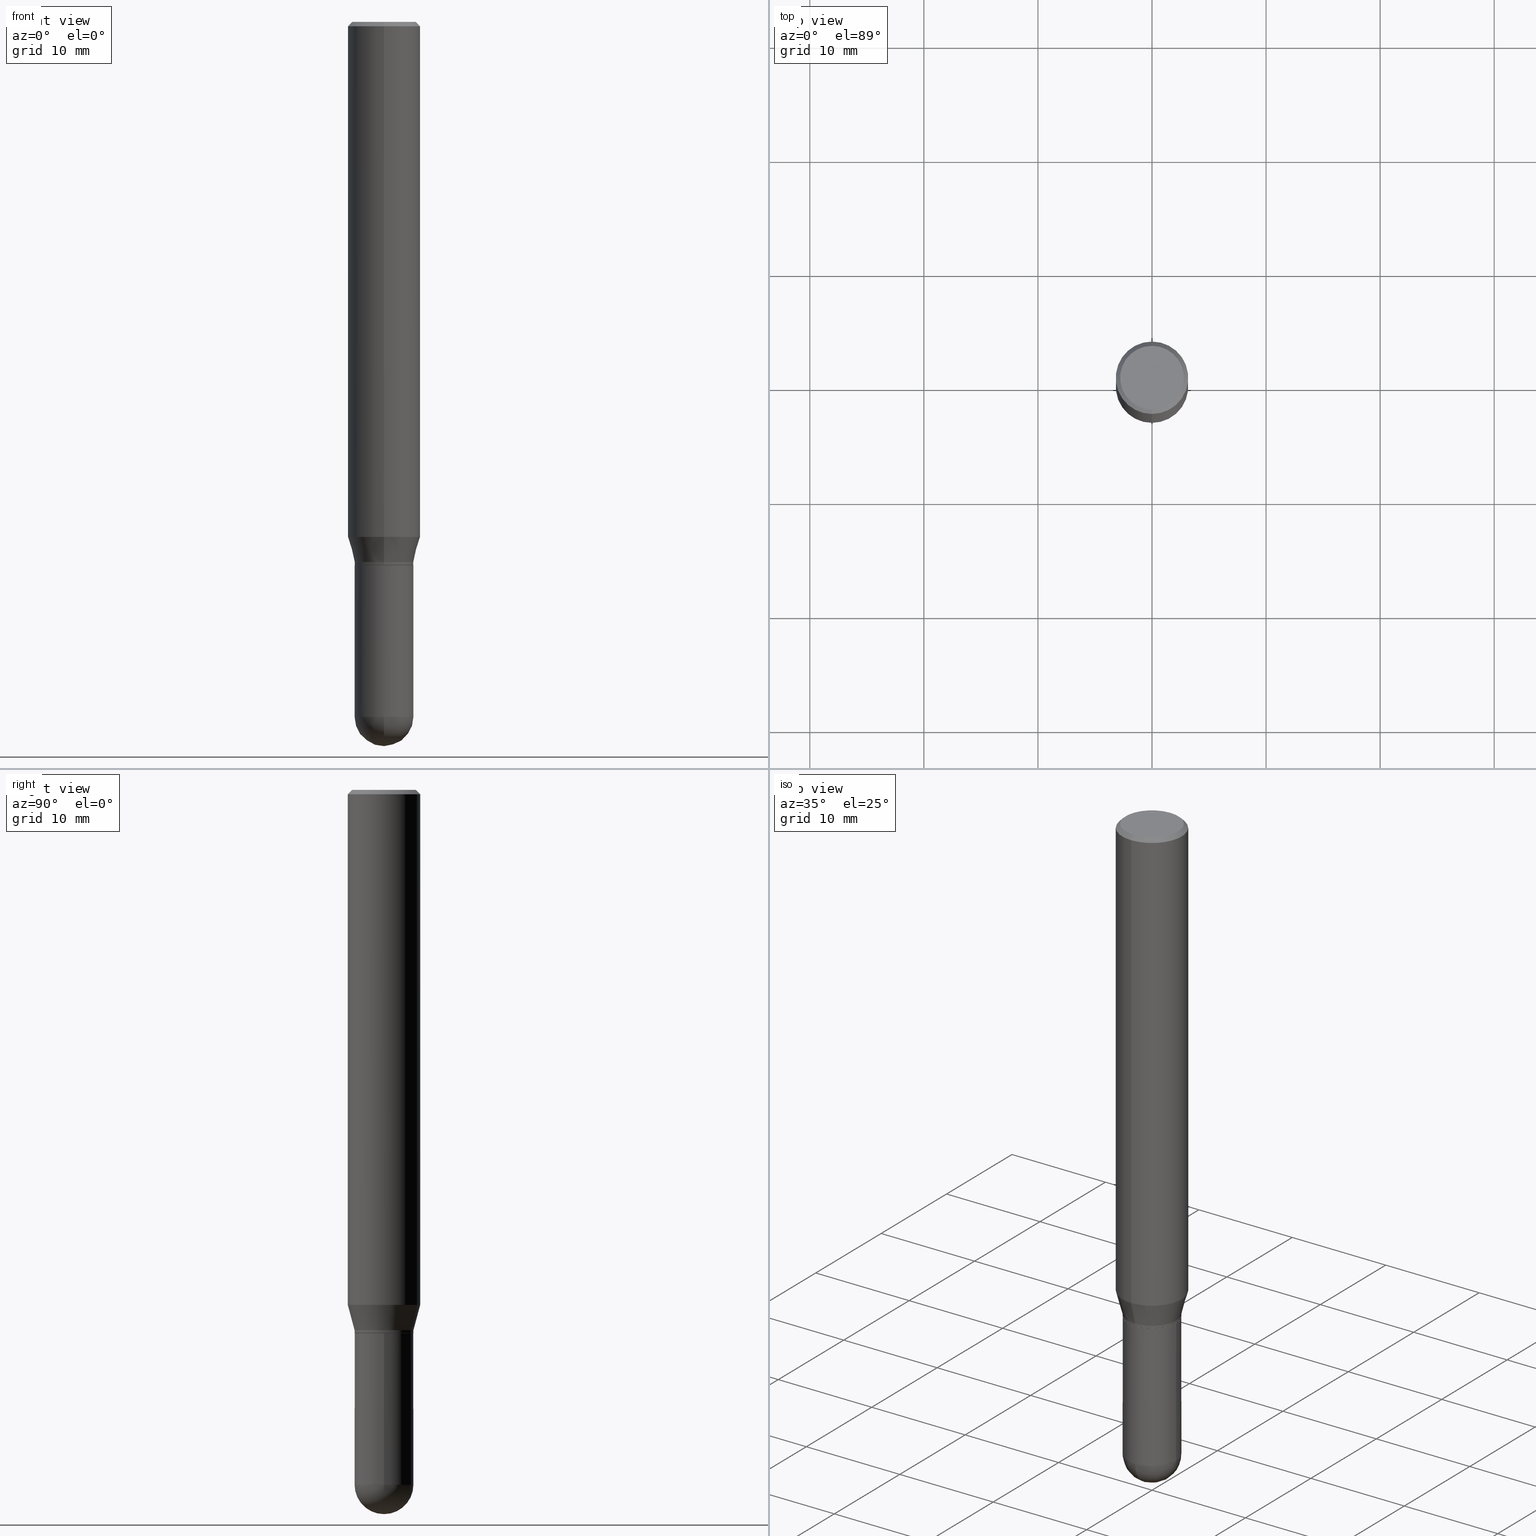
[diagram: canonical four-view strip — front | top / right | iso, engineering-drawing reading convention]
A machine part, canonical four-view strip (front | top / right | iso — engineering-drawing reading convention). The complete STEP part file that produces these views, byte-faithful:
ISO-10303-21;
HEADER;
FILE_DESCRIPTION (( 'STEP AP203' ),
    '1' );
FILE_NAME ('39526.STEP',
    '2024-03-08T12:52:22',
    ( '' ),
    ( '' ),
    'SwSTEP 2.0',
    'SolidWorks 2023',
    '' );
FILE_SCHEMA (( 'CONFIG_CONTROL_DESIGN' ));
ENDSEC;

DATA;
#1 = ORIENTED_EDGE ( 'NONE', *, *, #157, .T. ) ;
#2 = CIRCLE ( 'NONE', #101, 0.1015500000000000985 ) ;
#3 = AXIS2_PLACEMENT_3D ( 'NONE', #361, #445, #88 ) ;
#4 = CARTESIAN_POINT ( 'NONE',  ( -8.728703347107828458E-16, -0.1250000000000000555, -0.01499999999999956403 ) ) ;
#5 = EDGE_LOOP ( 'NONE', ( #257, #48, #97, #421 ) ) ;
#6 = DIRECTION ( 'NONE',  ( -6.982962677686266711E-15, -1.000000000000000000, 3.491458814188467583E-15 ) ) ;
#7 = ORIENTED_EDGE ( 'NONE', *, *, #13, .F. ) ;
#8 = FACE_OUTER_BOUND ( 'NONE', #282, .T. ) ;
#9 = ORIENTED_EDGE ( 'NONE', *, *, #44, .T. ) ;
#10 = VERTEX_POINT ( 'NONE', #55 ) ;
#11 = FACE_OUTER_BOUND ( 'NONE', #63, .T. ) ;
#12 = CARTESIAN_POINT ( 'NONE',  ( 4.584060760983900341E-29, -6.544739547196283432E-15, -1.874500000000000277 ) ) ;
#13 = EDGE_CURVE ( 'NONE', #164, #455, #405, .T. ) ;
#14 = CARTESIAN_POINT ( 'NONE',  ( -0.1015500000000000708, 7.215561481643822416E-16, -4.995178584153860605E-30 ) ) ;
#15 = EDGE_LOOP ( 'NONE', ( #284, #213, #412, #340 ) ) ;
#16 = PERSON ( 'UNSPECIFIED', 'UNSPECIFIED', 'UNSPECIFIED', ('UNSPECIFIED'), ('UNSPECIFIED'), ('UNSPECIFIED') ) ;
#17 = VECTOR ( 'NONE', #119, 39.37007874015748143 ) ;
#18 = LOCAL_TIME ( 7, 52, 22.00000000000000000, #355 ) ;
#19 = ORIENTED_EDGE ( 'NONE', *, *, #456, .T. ) ;
#20 = PLANE ( 'NONE',  #336 ) ;
#21 = LINE ( 'NONE', #183, #469 ) ;
#22 = EDGE_CURVE ( 'NONE', #104, #455, #21, .T. ) ;
#23 = ORIENTED_EDGE ( 'NONE', *, *, #444, .F. ) ;
#24 = DATE_AND_TIME ( #464, #235 ) ;
#25 = VECTOR ( 'NONE', #346, 39.37007874015748143 ) ;
#26 = CARTESIAN_POINT ( 'NONE',  ( -0.1015500000000000708, -6.738779315575238500E-15, -1.875000000000000000 ) ) ;
#27 = AXIS2_PLACEMENT_3D ( 'NONE', #402, #163, #124 ) ;
#28 = DIMENSIONAL_EXPONENTS ( 1.000000000000000000, 0.000000000000000000, 0.000000000000000000, 0.000000000000000000, 0.000000000000000000, 0.000000000000000000, 0.000000000000000000 ) ;
#29 = DATE_AND_TIME ( #158, #18 ) ;
#30 = FACE_OUTER_BOUND ( 'NONE', #143, .T. ) ;
#31 = CARTESIAN_POINT ( 'NONE',  ( 7.215561481643815513E-16, 0.1015499999999999875, -3.545576425808388340E-16 ) ) ;
#32 = CARTESIAN_POINT ( 'NONE',  ( 7.215561481644268122E-16, 0.1015499999999933678, -1.874500000000000499 ) ) ;
#33 = AXIS2_PLACEMENT_3D ( 'NONE', #468, #73, #353 ) ;
#34 = CALENDAR_DATE ( 2024, 8, 3 ) ;
#35 = CARTESIAN_POINT ( 'NONE',  ( 4.585283503251433812E-29, -6.546485276603377605E-15, -1.875000000000000000 ) ) ;
#36 = EDGE_CURVE ( 'NONE', #248, #203, #129, .T. ) ;
#37 = CYLINDRICAL_SURFACE ( 'NONE', #480, 0.1015500000000000708 ) ;
#38 = CARTESIAN_POINT ( 'NONE',  ( -0.1015500000000000985, -6.738779315575238500E-15, -2.398450000000000415 ) ) ;
#39 = EDGE_LOOP ( 'NONE', ( #395, #9, #327, #437 ) ) ;
#40 = AXIS2_PLACEMENT_3D ( 'NONE', #334, #251, #210 ) ;
#41 = AXIS2_PLACEMENT_3D ( 'NONE', #254, #293, #53 ) ;
#42 = DIRECTION ( 'NONE',  ( -6.982962677686266711E-15, -1.000000000000000000, 2.690150658458161914E-15 ) ) ;
#43 = EDGE_LOOP ( 'NONE', ( #148, #1, #95, #420 ) ) ;
#44 = EDGE_CURVE ( 'NONE', #330, #279, #497, .T. ) ;
#45 = CARTESIAN_POINT ( 'NONE',  ( 0.000000000000000000, 0.000000000000000000, 0.000000000000000000 ) ) ;
#46 = ORIENTED_EDGE ( 'NONE', *, *, #215, .F. ) ;
#47 = DIRECTION ( 'NONE',  ( 1.000000000000000000, -6.982962677686269866E-15, 0.000000000000000000 ) ) ;
#48 = ORIENTED_EDGE ( 'NONE', *, *, #91, .F. ) ;
#49 = CIRCLE ( 'NONE', #27, 0.1250000000000000000 ) ;
#50 = DIRECTION ( 'NONE',  ( 6.982962677686265922E-15, 1.000000000000000000, -3.483106191921935554E-15 ) ) ;
#51 = ORIENTED_EDGE ( 'NONE', *, *, #296, .F. ) ;
#52 = ADVANCED_FACE ( 'NONE', ( #452 ), #298, .T. ) ;
#53 = DIRECTION ( 'NONE',  ( 1.000000000000000000, -6.982962677686258033E-15, 0.000000000000000000 ) ) ;
#54 = VERTEX_POINT ( 'NONE', #498 ) ;
#55 = CARTESIAN_POINT ( 'NONE',  ( 8.048672839322978639E-16, 0.1015499999999934788, -1.865000000000000213 ) ) ;
#56 = CONICAL_SURFACE ( 'NONE', #3, 0.1010500000000000703, 0.7853981633974653764 ) ;
#57 = EDGE_CURVE ( 'NONE', #399, #166, #139, .T. ) ;
#58 = CYLINDRICAL_SURFACE ( 'NONE', #130, 0.1250000000000000000 ) ;
#59 = APPROVAL_PERSON_ORGANIZATION ( #391, #126, #384 ) ;
#60 = DIRECTION ( 'NONE',  ( -2.445484535067431049E-29, 3.491458814188467583E-15, 1.000000000000000000 ) ) ;
#61 = DIRECTION ( 'NONE',  ( -2.445484535067431049E-29, 3.491458814188467583E-15, 1.000000000000000000 ) ) ;
#62 = APPROVAL ( #509, 'UNSPECIFIED' ) ;
#63 = EDGE_LOOP ( 'NONE', ( #208, #453, #277, #138 ) ) ;
#64 = DIRECTION ( 'NONE',  ( 1.000000000000000000, -6.982962677686258033E-15, 0.000000000000000000 ) ) ;
#65 = DATE_AND_TIME ( #272, #318 ) ;
#66 = CIRCLE ( 'NONE', #266, 0.1250000000000000000 ) ;
#67 = DIRECTION ( 'NONE',  ( 6.982962677686266711E-15, 1.000000000000000000, -2.690150658458162309E-15 ) ) ;
#68 = AXIS2_PLACEMENT_3D ( 'NONE', #398, #165, #42 ) ;
#69 = EDGE_CURVE ( 'NONE', #455, #164, #416, .T. ) ;
#70 = COORDINATED_UNIVERSAL_TIME_OFFSET ( 5, 0, .BEHIND. ) ;
#71 = DIRECTION ( 'NONE',  ( -1.000000000000000000, 6.982962677686266711E-15, -4.883557194083112901E-29 ) ) ;
#72 = MECHANICAL_CONTEXT ( 'NONE', #295, 'mechanical' ) ;
#73 = DIRECTION ( 'NONE',  ( -2.445484535067431049E-29, 3.491458814188467583E-15, 1.000000000000000000 ) ) ;
#74 = APPLICATION_PROTOCOL_DEFINITION ( 'international standard', 'config_control_design', 1994, #214 ) ;
#75 = EDGE_CURVE ( 'NONE', #54, #359, #150, .T. ) ;
#76 = CARTESIAN_POINT ( 'NONE',  ( 0.1015500000000000708, -7.255647370249939489E-15, -1.875000000000000000 ) ) ;
#77 = AXIS2_PLACEMENT_3D ( 'NONE', #12, #333, #430 ) ;
#78 = AXIS2_PLACEMENT_3D ( 'NONE', #363, #512, #134 ) ;
#79 = CARTESIAN_POINT ( 'NONE',  ( 7.180034344856274914E-16, 0.1010499999999935339, -1.875000000000000444 ) ) ;
#80 = APPROVAL ( #423, 'UNSPECIFIED' ) ;
#81 = DIRECTION ( 'NONE',  ( -6.982962677686265922E-15, -1.000000000000000000, 3.491458814188467583E-15 ) ) ;
#82 = ORIENTED_EDGE ( 'NONE', *, *, #57, .F. ) ;
#83 = CARTESIAN_POINT ( 'NONE',  ( 7.197797913250275462E-16, 0.1010499999999935339, -1.875000000000000444 ) ) ;
#84 = ORIENTED_EDGE ( 'NONE', *, *, #157, .F. ) ;
#85 = CIRCLE ( 'NONE', #406, 0.1010500000000000703 ) ;
#86 = CARTESIAN_POINT ( 'NONE',  ( 3.668226802601146923E-31, -5.237188221282701522E-17, -0.01499999999999999944 ) ) ;
#87 = ORIENTED_EDGE ( 'NONE', *, *, #215, .T. ) ;
#88 = DIRECTION ( 'NONE',  ( -6.982962677686265922E-15, -1.000000000000000000, 2.703461646377299523E-15 ) ) ;
#89 = ORIENTED_EDGE ( 'NONE', *, *, #388, .F. ) ;
#90 = DIRECTION ( 'NONE',  ( -2.445484535067431049E-29, 3.491458814188467583E-15, 1.000000000000000000 ) ) ;
#91 = EDGE_CURVE ( 'NONE', #370, #54, #308, .T. ) ;
#92 = VECTOR ( 'NONE', #349, 39.37007874015748143 ) ;
#93 = AXIS2_PLACEMENT_3D ( 'NONE', #376, #90, #219 ) ;
#94 = DIRECTION ( 'NONE',  ( -6.982962677686265922E-15, -1.000000000000000000, 3.491458814188467583E-15 ) ) ;
#95 = ORIENTED_EDGE ( 'NONE', *, *, #205, .F. ) ;
#96 = DIRECTION ( 'NONE',  ( -1.000000000000000000, 6.982962677686265922E-15, -4.876176775795935793E-29 ) ) ;
#97 = ORIENTED_EDGE ( 'NONE', *, *, #242, .T. ) ;
#98 = LINE ( 'NONE', #256, #470 ) ;
#99 = MANIFOLD_SOLID_BREP ( 'Body-Move/Copy2[1]', #153 ) ;
#100 = ORIENTED_EDGE ( 'NONE', *, *, #288, .T. ) ;
#101 = AXIS2_PLACEMENT_3D ( 'NONE', #356, #273, #503 ) ;
#102 = VECTOR ( 'NONE', #439, 39.37007874015748143 ) ;
#103 = CARTESIAN_POINT ( 'NONE',  ( 0.1015500000000000985, -8.169455323658661228E-15, -2.398450000000000415 ) ) ;
#104 = VERTEX_POINT ( 'NONE', #304 ) ;
#105 = PRODUCT ( '39526', '39526', '', ( #72 ) ) ;
#106 = ORIENTED_EDGE ( 'NONE', *, *, #444, .T. ) ;
#107 = PERSON_AND_ORGANIZATION_ROLE ( 'creator' ) ;
#108 = CARTESIAN_POINT ( 'NONE',  ( 3.975789068314252337E-48, -5.676299967089012762E-34, -1.625767413902138821E-19 ) ) ;
#109 = PRODUCT_DEFINITION ( 'UNKNOWN', '', #310, #228 ) ;
#110 = APPROVAL_ROLE ( '' ) ;
#111 = ADVANCED_BREP_SHAPE_REPRESENTATION ( '39526', ( #99, #413, #140 ), #299 ) ;
#112 = CIRCLE ( 'NONE', #258, 0.1010500000000000703 ) ;
#113 = FACE_OUTER_BOUND ( 'NONE', #255, .T. ) ;
#114 = CC_DESIGN_SECURITY_CLASSIFICATION ( #428, ( #310 ) ) ;
#115 = CARTESIAN_POINT ( 'NONE',  ( 4.560828657900758226E-29, -6.511570688461491770E-15, -1.864999999999999991 ) ) ;
#116 = EDGE_CURVE ( 'NONE', #164, #10, #193, .T. ) ;
#117 = COORDINATED_UNIVERSAL_TIME_OFFSET ( 5, 0, .BEHIND. ) ;
#118 = CARTESIAN_POINT ( 'NONE',  ( 8.728703347107836346E-16, 0.1249999999999999445, -0.01500000000000043486 ) ) ;
#119 = DIRECTION ( 'NONE',  ( 4.937700262164543309E-15, 0.7071067811865444641, -0.7071067811865505703 ) ) ;
#120 = AXIS2_PLACEMENT_3D ( 'NONE', #366, #321, #6 ) ;
#121 = LOCAL_TIME ( 7, 52, 22.00000000000000000, #70 ) ;
#122 = DIRECTION ( 'NONE',  ( -6.982962677686265922E-15, -1.000000000000000000, 3.483106191921935554E-15 ) ) ;
#123 = ORIENTED_EDGE ( 'NONE', *, *, #438, .T. ) ;
#124 = DIRECTION ( 'NONE',  ( -6.982962677686265922E-15, -1.000000000000000000, 3.483106191921935554E-15 ) ) ;
#125 = ORIENTED_EDGE ( 'NONE', *, *, #91, .T. ) ;
#126 = APPROVAL ( #467, 'UNSPECIFIED' ) ;
#127 = FACE_OUTER_BOUND ( 'NONE', #5, .T. ) ;
#128 = ORIENTED_EDGE ( 'NONE', *, *, #185, .T. ) ;
#129 = CIRCLE ( 'NONE', #316, 0.1015500000000000708 ) ;
#130 = AXIS2_PLACEMENT_3D ( 'NONE', #147, #332, #94 ) ;
#131 = APPROVAL_PERSON_ORGANIZATION ( #154, #80, #110 ) ;
#132 = CARTESIAN_POINT ( 'NONE',  ( 3.668226802601146923E-31, -5.237188221282701522E-17, -0.01499999999999999944 ) ) ;
#133 = ADVANCED_FACE ( 'NONE', ( #424 ), #268, .T. ) ;
#134 = DIRECTION ( 'NONE',  ( -6.982962677686266711E-15, -1.000000000000000000, 3.491458814188467583E-15 ) ) ;
#135 = ORIENTED_EDGE ( 'NONE', *, *, #403, .F. ) ;
#136 = CC_DESIGN_PERSON_AND_ORGANIZATION_ASSIGNMENT ( #233, #267, ( #310 ) ) ;
#137 = DIRECTION ( 'NONE',  ( -2.445484535067430768E-29, 3.491458814188467188E-15, 1.000000000000000000 ) ) ;
#138 = ORIENTED_EDGE ( 'NONE', *, *, #368, .F. ) ;
#139 = CIRCLE ( 'NONE', #232, 0.1015500000000000985 ) ;
#140 = AXIS2_PLACEMENT_3D ( 'NONE', #380, #303, #461 ) ;
#141 = PLANE ( 'NONE',  #146 ) ;
#142 = DIRECTION ( 'NONE',  ( 1.000000000000000000, -6.982962677686269866E-15, 0.000000000000000000 ) ) ;
#143 = EDGE_LOOP ( 'NONE', ( #286, #484 ) ) ;
#144 =( CONVERSION_BASED_UNIT ( 'INCH', #373 ) LENGTH_UNIT ( ) NAMED_UNIT ( #28 ) );
#145 = ORIENTED_EDGE ( 'NONE', *, *, #22, .T. ) ;
#146 = AXIS2_PLACEMENT_3D ( 'NONE', #261, #287, #419 ) ;
#147 = CARTESIAN_POINT ( 'NONE',  ( 0.000000000000000000, 0.000000000000000000, 0.000000000000000000 ) ) ;
#148 = ORIENTED_EDGE ( 'NONE', *, *, #388, .T. ) ;
#149 = ADVANCED_FACE ( 'NONE', ( #460 ), #392, .T. ) ;
#150 = LINE ( 'NONE', #196, #200 ) ;
#151 = APPROVAL_ROLE ( '' ) ;
#152 = CARTESIAN_POINT ( 'NONE',  ( 0.1015500000000000708, -7.091198599190408807E-16, 4.951757515820776576E-30 ) ) ;
#153 = CLOSED_SHELL ( 'NONE', ( #307, #347, #511, #149, #133 ) ) ;
#154 = PERSON_AND_ORGANIZATION ( #16, #178 ) ;
#155 = CIRCLE ( 'NONE', #68, 0.1015499999999999875 ) ;
#156 = LINE ( 'NONE', #152, #25 ) ;
#157 = EDGE_CURVE ( 'NONE', #10, #374, #225, .T. ) ;
#158 = CALENDAR_DATE ( 2024, 8, 3 ) ;
#159 = LINE ( 'NONE', #118, #17 ) ;
#160 = DIRECTION ( 'NONE',  ( -6.982962677686266711E-15, -1.000000000000000000, 2.690150658458161914E-15 ) ) ;
#161 = CARTESIAN_POINT ( 'NONE',  ( 0.000000000000000000, 0.000000000000000000, 0.000000000000000000 ) ) ;
#162 = AXIS2_PLACEMENT_3D ( 'NONE', #289, #60, #342 ) ;
#163 = DIRECTION ( 'NONE',  ( -2.445484535067431049E-29, 3.491458814188467583E-15, 1.000000000000000000 ) ) ;
#164 = VERTEX_POINT ( 'NONE', #32 ) ;
#165 = DIRECTION ( 'NONE',  ( -2.445484535067431049E-29, 3.491458814188467583E-15, 1.000000000000000000 ) ) ;
#166 = VERTEX_POINT ( 'NONE', #189 ) ;
#167 = CYLINDRICAL_SURFACE ( 'NONE', #397, 0.1250000000000000000 ) ;
#168 = EDGE_LOOP ( 'NONE', ( #446, #19, #82, #443 ) ) ;
#169 = VECTOR ( 'NONE', #217, 39.37007874015748143 ) ;
#170 = ADVANCED_FACE ( 'NONE', ( #30 ), #504, .F. ) ;
#171 = CYLINDRICAL_SURFACE ( 'NONE', #120, 0.1015499999999999875 ) ;
#172 = ORIENTED_EDGE ( 'NONE', *, *, #22, .F. ) ;
#173 = DIRECTION ( 'NONE',  ( 6.982962677686266711E-15, 1.000000000000000000, 0.000000000000000000 ) ) ;
#174 = ORIENTED_EDGE ( 'NONE', *, *, #194, .T. ) ;
#175 = CARTESIAN_POINT ( 'NONE',  ( 8.881784197001688169E-16, 0.1249999999999999445, -0.01500000000000043486 ) ) ;
#176 = CARTESIAN_POINT ( 'NONE',  ( 4.584060760983900341E-29, -6.544739547196283432E-15, -1.874500000000000277 ) ) ;
#177 = VECTOR ( 'NONE', #385, 39.37007874015748143 ) ;
#178 = ORGANIZATION ( 'UNSPECIFIED', 'UNSPECIFIED', '' ) ;
#179 =( NAMED_UNIT ( * ) PLANE_ANGLE_UNIT ( ) SI_UNIT ( $, .RADIAN. ) );
#180 = EDGE_CURVE ( 'NONE', #374, #474, #222, .T. ) ;
#181 = DIRECTION ( 'NONE',  ( -2.445484535067431049E-29, 3.491458814188467583E-15, 1.000000000000000000 ) ) ;
#182 = CARTESIAN_POINT ( 'NONE',  ( 7.091198599190867332E-16, 0.1015499999999935343, -1.875000000000000444 ) ) ;
#183 = CARTESIAN_POINT ( 'NONE',  ( -7.056283785801518238E-16, -0.1010500000000066068, -1.874999999999999778 ) ) ;
#184 = ORIENTED_EDGE ( 'NONE', *, *, #57, .T. ) ;
#185 = EDGE_CURVE ( 'NONE', #367, #279, #2, .T. ) ;
#186 = PERSON_AND_ORGANIZATION ( #16, #178 ) ;
#187 = APPROVAL_PERSON_ORGANIZATION ( #348, #62, #151 ) ;
#188 = LINE ( 'NONE', #508, #418 ) ;
#189 = CARTESIAN_POINT ( 'NONE',  ( 7.091198599190993550E-16, 0.1015499999999916747, -2.398450000000000415 ) ) ;
#190 = CARTESIAN_POINT ( 'NONE',  ( 5.899408758987094508E-29, -8.325347365436315775E-15, -2.398450000000000415 ) ) ;
#191 = PERSON_AND_ORGANIZATION_ROLE ( 'design_owner' ) ;
#192 = AXIS2_PLACEMENT_3D ( 'NONE', #449, #369, #173 ) ;
#193 = LINE ( 'NONE', #31, #463 ) ;
#194 = EDGE_CURVE ( 'NONE', #399, #203, #156, .T. ) ;
#195 = PERSON_AND_ORGANIZATION ( #16, #178 ) ;
#196 = CARTESIAN_POINT ( 'NONE',  ( -8.575622497214409523E-16, -0.1250000000000000555, -0.01499999999999956403 ) ) ;
#197 = FACE_OUTER_BOUND ( 'NONE', #39, .T. ) ;
#198 = ADVANCED_FACE ( 'NONE', ( #113 ), #425, .T. ) ;
#199 = FACE_OUTER_BOUND ( 'NONE', #15, .T. ) ;
#200 = VECTOR ( 'NONE', #350, 39.37007874015748143 ) ;
#201 = EDGE_LOOP ( 'NONE', ( #135, #128, #123, #174, #244 ) ) ;
#202 = CARTESIAN_POINT ( 'NONE',  ( 6.152088223088502938E-29, -8.673689151273167162E-15, -2.500000000000000000 ) ) ;
#203 = VERTEX_POINT ( 'NONE', #76 ) ;
#204 = CARTESIAN_POINT ( 'NONE',  ( 3.668226802601146923E-31, -5.237188221282701522E-17, -0.01499999999999999944 ) ) ;
#205 = EDGE_CURVE ( 'NONE', #206, #374, #66, .T. ) ;
#206 = VERTEX_POINT ( 'NONE', #465 ) ;
#207 = DIRECTION ( 'NONE',  ( 2.445484535067431049E-29, -3.491458814188467583E-15, -1.000000000000000000 ) ) ;
#208 = ORIENTED_EDGE ( 'NONE', *, *, #180, .F. ) ;
#209 = CLOSED_SHELL ( 'NONE', ( #274, #52, #323, #260, #505, #198, #472, #396, #414, #170, #360, #253 ) ) ;
#210 = DIRECTION ( 'NONE',  ( 1.000000000000000000, -6.982962677686258033E-15, 0.000000000000000000 ) ) ;
#211 = ORIENTED_EDGE ( 'NONE', *, *, #237, .T. ) ;
#212 = CARTESIAN_POINT ( 'NONE',  ( -7.091198599189950281E-16, -0.1015500000000066211, -1.874499999999999833 ) ) ;
#213 = ORIENTED_EDGE ( 'NONE', *, *, #75, .T. ) ;
#214 = APPLICATION_CONTEXT ( 'configuration controlled 3d designs of mechanical parts and assemblies' ) ;
#215 = EDGE_CURVE ( 'NONE', #10, #493, #240, .T. ) ;
#216 = DIRECTION ( 'NONE',  ( -2.445468806185136597E-29, 3.491481338843145583E-15, 1.000000000000000000 ) ) ;
#217 = DIRECTION ( 'NONE',  ( -2.445484535067430768E-29, 3.491458814188467188E-15, 1.000000000000000000 ) ) ;
#218 = DIRECTION ( 'NONE',  ( -6.982962677686266711E-15, -1.000000000000000000, 2.690150658458161914E-15 ) ) ;
#219 = DIRECTION ( 'NONE',  ( -6.982962677686266711E-15, -1.000000000000000000, 2.690150658458161914E-15 ) ) ;
#220 = CARTESIAN_POINT ( 'NONE',  ( 5.899408758987094508E-29, -8.325347365436315775E-15, -2.398450000000000415 ) ) ;
#221 = DATE_AND_TIME ( #34, #337 ) ;
#222 = LINE ( 'NONE', #227, #177 ) ;
#223 = VECTOR ( 'NONE', #447, 39.37007874015748143 ) ;
#224 = PERSON_AND_ORGANIZATION_ROLE ( 'classification_officer' ) ;
#225 = LINE ( 'NONE', #433, #92 ) ;
#226 = SECURITY_CLASSIFICATION_LEVEL ( 'unclassified' ) ;
#227 = CARTESIAN_POINT ( 'NONE',  ( 8.881784197001251337E-16, 0.1250000000000000000, -4.364323517735584479E-16 ) ) ;
#228 = DESIGN_CONTEXT ( 'detailed design', #214, 'design' ) ;
#229 = EDGE_CURVE ( 'NONE', #374, #206, #265, .T. ) ;
#230 = DATE_TIME_ROLE ( 'classification_date' ) ;
#231 = DIRECTION ( 'NONE',  ( -2.445484535067431049E-29, 3.491458814188467583E-15, 1.000000000000000000 ) ) ;
#232 = AXIS2_PLACEMENT_3D ( 'NONE', #302, #263, #64 ) ;
#233 = PERSON_AND_ORGANIZATION ( #16, #178 ) ;
#234 = DIRECTION ( 'NONE',  ( -1.807323732225330534E-15, -0.2588190451025182415, 0.9659258262890689783 ) ) ;
#235 = LOCAL_TIME ( 7, 52, 22.00000000000000000, #270 ) ;
#236 = FACE_OUTER_BOUND ( 'NONE', #262, .T. ) ;
#237 = EDGE_CURVE ( 'NONE', #493, #206, #188, .T. ) ;
#238 = DIRECTION ( 'NONE',  ( 6.982962677686266711E-15, 1.000000000000000000, -2.690150658458162309E-15 ) ) ;
#239 = CARTESIAN_POINT ( 'NONE',  ( 8.881784197001684225E-16, 0.1249999999999937828, -1.777483408562510636 ) ) ;
#240 = CIRCLE ( 'NONE', #499, 0.1015499999999999875 ) ;
#241 = ORIENTED_EDGE ( 'NONE', *, *, #13, .T. ) ;
#242 = EDGE_CURVE ( 'NONE', #370, #474, #159, .T. ) ;
#243 = CYLINDRICAL_SURFACE ( 'NONE', #78, 0.1015499999999999875 ) ;
#244 = ORIENTED_EDGE ( 'NONE', *, *, #36, .F. ) ;
#245 = LINE ( 'NONE', #79, #102 ) ;
#246 = ORIENTED_EDGE ( 'NONE', *, *, #490, .T. ) ;
#247 = CARTESIAN_POINT ( 'NONE',  ( -8.728703347107832402E-16, -0.1250000000000000000, 4.364323517735584479E-16 ) ) ;
#248 = VERTEX_POINT ( 'NONE', #26 ) ;
#249 = AXIS2_PLACEMENT_3D ( 'NONE', #220, #379, #417 ) ;
#250 = AXIS2_PLACEMENT_3D ( 'NONE', #473, #329, #238 ) ;
#251 = DIRECTION ( 'NONE',  ( -2.445468806185136597E-29, 3.491481338843145583E-15, 1.000000000000000000 ) ) ;
#252 = ORIENTED_EDGE ( 'NONE', *, *, #69, .T. ) ;
#253 = ADVANCED_FACE ( 'NONE', ( #502 ), #243, .T. ) ;
#254 = CARTESIAN_POINT ( 'NONE',  ( 5.865334658194741045E-29, -8.374143417148343763E-15, -2.398450000000000415 ) ) ;
#255 = EDGE_LOOP ( 'NONE', ( #84, #87, #211, #440 ) ) ;
#256 = CARTESIAN_POINT ( 'NONE',  ( -7.091198599190402890E-16, -0.1015499999999999875, 3.545576425808388340E-16 ) ) ;
#257 = ORIENTED_EDGE ( 'NONE', *, *, #75, .F. ) ;
#258 = AXIS2_PLACEMENT_3D ( 'NONE', #291, #61, #371 ) ;
#259 = CC_DESIGN_APPROVAL ( #80, ( #310 ) ) ;
#260 = ADVANCED_FACE ( 'NONE', ( #280 ), #167, .T. ) ;
#261 = CARTESIAN_POINT ( 'NONE',  ( 7.681258945454894762E-16, 0.1100000000000000283, -3.841417579314265946E-16 ) ) ;
#262 = EDGE_LOOP ( 'NONE', ( #407, #292, #294, #319, #184 ) ) ;
#263 = DIRECTION ( 'NONE',  ( -2.445468806185136597E-29, 3.491481338843145583E-15, 1.000000000000000000 ) ) ;
#264 = DIRECTION ( 'NONE',  ( -2.445484535067430768E-29, 3.491458814188467188E-15, 1.000000000000000000 ) ) ;
#265 = CIRCLE ( 'NONE', #33, 0.1250000000000000000 ) ;
#266 = AXIS2_PLACEMENT_3D ( 'NONE', #435, #315, #311 ) ;
#267 = PERSON_AND_ORGANIZATION_ROLE ( 'design_supplier' ) ;
#268 = CYLINDRICAL_SURFACE ( 'NONE', #365, 0.1015500000000000708 ) ;
#269 = EDGE_CURVE ( 'NONE', #203, #248, #309, .T. ) ;
#270 = COORDINATED_UNIVERSAL_TIME_OFFSET ( 5, 0, .BEHIND. ) ;
#271 = DIRECTION ( 'NONE',  ( -2.445484535067431049E-29, 3.491458814188467583E-15, 1.000000000000000000 ) ) ;
#272 = CALENDAR_DATE ( 2024, 8, 3 ) ;
#273 = DIRECTION ( 'NONE',  ( -2.445468806185136597E-29, 3.491481338843145583E-15, 1.000000000000000000 ) ) ;
#274 = ADVANCED_FACE ( 'NONE', ( #8 ), #171, .T. ) ;
#275 = DIRECTION ( 'NONE',  ( -2.445468806185136597E-29, 3.491481338843145583E-15, 1.000000000000000000 ) ) ;
#276 = CARTESIAN_POINT ( 'NONE',  ( 3.975789068314252337E-48, -5.676299967089012762E-34, -1.625767413902138821E-19 ) ) ;
#277 = ORIENTED_EDGE ( 'NONE', *, *, #495, .T. ) ;
#278 = DIRECTION ( 'NONE',  ( -6.982962677686265922E-15, -1.000000000000000000, 3.491458814188467188E-15 ) ) ;
#279 = VERTEX_POINT ( 'NONE', #477 ) ;
#280 = FACE_OUTER_BOUND ( 'NONE', #364, .T. ) ;
#281 = CONICAL_SURFACE ( 'NONE', #344, 0.1250000000000000000, 0.7853981633974473908 ) ;
#282 = EDGE_LOOP ( 'NONE', ( #252, #486, #89, #23 ) ) ;
#283 = FACE_OUTER_BOUND ( 'NONE', #322, .T. ) ;
#284 = ORIENTED_EDGE ( 'NONE', *, *, #354, .F. ) ;
#285 = DIRECTION ( 'NONE',  ( -2.445484535067431049E-29, 3.491458814188467583E-15, 1.000000000000000000 ) ) ;
#286 = ORIENTED_EDGE ( 'NONE', *, *, #288, .F. ) ;
#287 = DIRECTION ( 'NONE',  ( 2.445484535067431049E-29, -3.491458814188467188E-15, -1.000000000000000000 ) ) ;
#288 = EDGE_CURVE ( 'NONE', #104, #372, #85, .T. ) ;
#289 = CARTESIAN_POINT ( 'NONE',  ( 4.585283503251433812E-29, -6.546485276603377605E-15, -1.875000000000000000 ) ) ;
#290 = AXIS2_PLACEMENT_3D ( 'NONE', #276, #394, #278 ) ;
#291 = CARTESIAN_POINT ( 'NONE',  ( 4.585283503251433812E-29, -6.546485276603377605E-15, -1.875000000000000000 ) ) ;
#292 = ORIENTED_EDGE ( 'NONE', *, *, #403, .T. ) ;
#293 = DIRECTION ( 'NONE',  ( -2.445468806185136597E-29, 3.491481338843145583E-15, 1.000000000000000000 ) ) ;
#294 = ORIENTED_EDGE ( 'NONE', *, *, #269, .F. ) ;
#295 = APPLICATION_CONTEXT ( 'configuration controlled 3d designs of mechanical parts and assemblies' ) ;
#296 = EDGE_CURVE ( 'NONE', #359, #474, #375, .T. ) ;
#297 = ORIENTED_EDGE ( 'NONE', *, *, #269, .T. ) ;
#298 = CONICAL_SURFACE ( 'NONE', #162, 0.1010500000000000703, 0.7853981633974653764 ) ;
#299 =( GEOMETRIC_REPRESENTATION_CONTEXT ( 3 ) GLOBAL_UNCERTAINTY_ASSIGNED_CONTEXT ( ( #314 ) ) GLOBAL_UNIT_ASSIGNED_CONTEXT ( ( #144, #179, #492 ) ) REPRESENTATION_CONTEXT ( 'NONE', 'WORKASPACE' ) );
#300 = CC_DESIGN_PERSON_AND_ORGANIZATION_ASSIGNMENT ( #186, #432, ( #310 ) ) ;
#301 = SHAPE_DEFINITION_REPRESENTATION ( #341, #111 ) ;
#302 = CARTESIAN_POINT ( 'NONE',  ( 5.865334658194741045E-29, -8.374143417148343763E-15, -2.398450000000000415 ) ) ;
#303 = DIRECTION ( 'NONE',  ( 0.000000000000000000, 0.000000000000000000, 1.000000000000000000 ) ) ;
#304 = CARTESIAN_POINT ( 'NONE',  ( -7.056283785801518238E-16, -0.1010500000000066068, -1.874999999999999778 ) ) ;
#305 = DATE_AND_TIME ( #501, #121 ) ;
#306 = DIRECTION ( 'NONE',  ( -6.982962677686265922E-15, -1.000000000000000000, 3.491458814188467188E-15 ) ) ;
#307 = ADVANCED_FACE ( 'NONE', ( #236 ), #37, .T. ) ;
#308 = CIRCLE ( 'NONE', #479, 0.1100000000000000283 ) ;
#309 = CIRCLE ( 'NONE', #326, 0.1015500000000000708 ) ;
#310 = PRODUCT_DEFINITION_FORMATION_WITH_SPECIFIED_SOURCE ( 'ANY', '', #105, .NOT_KNOWN. ) ;
#311 = DIRECTION ( 'NONE',  ( -6.982962677686265922E-15, -1.000000000000000000, 4.370956789862821150E-15 ) ) ;
#312 = PERSON_AND_ORGANIZATION ( #16, #178 ) ;
#313 = DIRECTION ( 'NONE',  ( -6.982962677686265922E-15, -1.000000000000000000, 3.491458814188467188E-15 ) ) ;
#314 = UNCERTAINTY_MEASURE_WITH_UNIT (LENGTH_MEASURE( 1.000000000000000082E-05 ), #144, 'distance_accuracy_value', 'NONE');
#315 = DIRECTION ( 'NONE',  ( -2.445484535067431049E-29, 3.491458814188467583E-15, 1.000000000000000000 ) ) ;
#316 = AXIS2_PLACEMENT_3D ( 'NONE', #450, #216, #142 ) ;
#317 = SPHERICAL_SURFACE ( 'NONE', #250, 0.1015499999999999736 ) ;
#318 = LOCAL_TIME ( 7, 52, 22.00000000000000000, #457 ) ;
#319 = ORIENTED_EDGE ( 'NONE', *, *, #194, .F. ) ;
#320 = CARTESIAN_POINT ( 'NONE',  ( 8.204981146281365554E-16, 0.1100000000000000283, -3.842230463021216703E-16 ) ) ;
#321 = DIRECTION ( 'NONE',  ( -2.445484535067431049E-29, 3.491458814188467583E-15, 1.000000000000000000 ) ) ;
#322 = EDGE_LOOP ( 'NONE', ( #362, #246, #145, #7 ) ) ;
#323 = ADVANCED_FACE ( 'NONE', ( #199 ), #382, .T. ) ;
#324 = AXIS2_PLACEMENT_3D ( 'NONE', #35, #462, #313 ) ;
#325 = DIRECTION ( 'NONE',  ( -2.445468806185136597E-29, 3.491481338843145583E-15, 1.000000000000000000 ) ) ;
#326 = AXIS2_PLACEMENT_3D ( 'NONE', #475, #357, #47 ) ;
#327 = ORIENTED_EDGE ( 'NONE', *, *, #185, .F. ) ;
#328 = AXIS2_PLACEMENT_3D ( 'NONE', #190, #71, #67 ) ;
#329 = DIRECTION ( 'NONE',  ( -1.000000000000000000, 6.982962677686266711E-15, -4.883557194083112901E-29 ) ) ;
#330 = VERTEX_POINT ( 'NONE', #202 ) ;
#331 = EDGE_CURVE ( 'NONE', #372, #164, #245, .T. ) ;
#332 = DIRECTION ( 'NONE',  ( -2.445484535067431049E-29, 3.491458814188467583E-15, 1.000000000000000000 ) ) ;
#333 = DIRECTION ( 'NONE',  ( -2.445484535067431049E-29, 3.491458814188467583E-15, 1.000000000000000000 ) ) ;
#334 = CARTESIAN_POINT ( 'NONE',  ( 5.865334658194741045E-29, -8.374143417148343763E-15, -2.398450000000000415 ) ) ;
#335 = DIRECTION ( 'NONE',  ( -4.937700262164631661E-15, -0.7071067811865571207, 0.7071067811865379138 ) ) ;
#336 = AXIS2_PLACEMENT_3D ( 'NONE', #182, #339, #96 ) ;
#337 = LOCAL_TIME ( 7, 52, 22.00000000000000000, #117 ) ;
#338 = EDGE_LOOP ( 'NONE', ( #125, #401 ) ) ;
#339 = DIRECTION ( 'NONE',  ( 2.438088387897960049E-29, -3.491481338843145188E-15, -1.000000000000000000 ) ) ;
#340 = ORIENTED_EDGE ( 'NONE', *, *, #242, .F. ) ;
#341 = PRODUCT_DEFINITION_SHAPE ( 'NONE', 'NONE',  #109 ) ;
#342 = DIRECTION ( 'NONE',  ( -6.982962677686265922E-15, -1.000000000000000000, 2.703461646377299523E-15 ) ) ;
#343 = AXIS2_PLACEMENT_3D ( 'NONE', #176, #181, #218 ) ;
#344 = AXIS2_PLACEMENT_3D ( 'NONE', #86, #400, #50 ) ;
#345 = DATE_TIME_ROLE ( 'creation_date' ) ;
#346 = DIRECTION ( 'NONE',  ( -2.445468806185136877E-29, 3.491481338843145188E-15, 1.000000000000000000 ) ) ;
#347 = ADVANCED_FACE ( 'NONE', ( #197 ), #317, .T. ) ;
#348 = PERSON_AND_ORGANIZATION ( #16, #178 ) ;
#349 = DIRECTION ( 'NONE',  ( 1.839019923739600710E-15, 0.2588190451025250138, 0.9659258262890670910 ) ) ;
#350 = DIRECTION ( 'NONE',  ( -4.851104656540959542E-15, -0.7071067811865493491, -0.7071067811865456854 ) ) ;
#351 = CIRCLE ( 'NONE', #41, 0.1015500000000000985 ) ;
#352 = CC_DESIGN_APPROVAL ( #126, ( #109 ) ) ;
#353 = DIRECTION ( 'NONE',  ( -6.982962677686265922E-15, -1.000000000000000000, 4.370956789862821150E-15 ) ) ;
#354 = EDGE_CURVE ( 'NONE', #54, #370, #390, .T. ) ;
#355 = COORDINATED_UNIVERSAL_TIME_OFFSET ( 5, 0, .BEHIND. ) ;
#356 = CARTESIAN_POINT ( 'NONE',  ( 5.865334658194741045E-29, -8.374143417148343763E-15, -2.398450000000000415 ) ) ;
#357 = DIRECTION ( 'NONE',  ( -2.445468806185136597E-29, 3.491481338843145583E-15, 1.000000000000000000 ) ) ;
#358 = DIRECTION ( 'NONE',  ( -2.445484535067431049E-29, 3.491458814188467583E-15, 1.000000000000000000 ) ) ;
#359 = VERTEX_POINT ( 'NONE', #4 ) ;
#360 = ADVANCED_FACE ( 'NONE', ( #283 ), #56, .T. ) ;
#361 = CARTESIAN_POINT ( 'NONE',  ( 4.585283503251433812E-29, -6.546485276603377605E-15, -1.875000000000000000 ) ) ;
#362 = ORIENTED_EDGE ( 'NONE', *, *, #331, .F. ) ;
#363 = CARTESIAN_POINT ( 'NONE',  ( 0.000000000000000000, 0.000000000000000000, 0.000000000000000000 ) ) ;
#364 = EDGE_LOOP ( 'NONE', ( #482, #494, #51, #476 ) ) ;
#365 = AXIS2_PLACEMENT_3D ( 'NONE', #431, #275, #389 ) ;
#366 = CARTESIAN_POINT ( 'NONE',  ( 0.000000000000000000, 0.000000000000000000, 0.000000000000000000 ) ) ;
#367 = VERTEX_POINT ( 'NONE', #38 ) ;
#368 = EDGE_CURVE ( 'NONE', #474, #359, #49, .T. ) ;
#369 = DIRECTION ( 'NONE',  ( 1.000000000000000000, -6.982962677686265922E-15, 4.883557194083112340E-29 ) ) ;
#370 = VERTEX_POINT ( 'NONE', #320 ) ;
#371 = DIRECTION ( 'NONE',  ( -6.982962677686265922E-15, -1.000000000000000000, 2.703461646377299523E-15 ) ) ;
#372 = VERTEX_POINT ( 'NONE', #83 ) ;
#373 = LENGTH_MEASURE_WITH_UNIT ( LENGTH_MEASURE( 0.02539999999999999897 ), #411 );
#374 = VERTEX_POINT ( 'NONE', #239 ) ;
#375 = CIRCLE ( 'NONE', #427, 0.1250000000000000000 ) ;
#376 = CARTESIAN_POINT ( 'NONE',  ( 4.560828657900758226E-29, -6.511570688461491770E-15, -1.864999999999999991 ) ) ;
#377 = CC_DESIGN_DATE_AND_TIME_ASSIGNMENT ( #24, #345, ( #109 ) ) ;
#378 = EDGE_LOOP ( 'NONE', ( #448, #241, #106, #46 ) ) ;
#379 = DIRECTION ( 'NONE',  ( -1.000000000000000000, 7.105427357601001070E-15, -4.926315508542082329E-29 ) ) ;
#380 = CARTESIAN_POINT ( 'NONE',  ( 0.000000000000000000, 0.000000000000000000, 0.000000000000000000 ) ) ;
#381 = DIRECTION ( 'NONE',  ( -6.982962677686266711E-15, -1.000000000000000000, 2.690150658458161914E-15 ) ) ;
#382 = CONICAL_SURFACE ( 'NONE', #506, 0.1250000000000000000, 0.7853981633974473908 ) ;
#383 = CC_DESIGN_PERSON_AND_ORGANIZATION_ASSIGNMENT ( #312, #191, ( #105 ) ) ;
#384 = APPROVAL_ROLE ( '' ) ;
#385 = DIRECTION ( 'NONE',  ( -2.445484535067430768E-29, 3.491458814188467188E-15, 1.000000000000000000 ) ) ;
#386 = APPROVAL_DATE_TIME ( #305, #62 ) ;
#387 = CARTESIAN_POINT ( 'NONE',  ( 4.560828657900758226E-29, -6.511570688461491770E-15, -1.864999999999999991 ) ) ;
#388 = EDGE_CURVE ( 'NONE', #493, #10, #155, .T. ) ;
#389 = DIRECTION ( 'NONE',  ( 1.000000000000000000, -6.982962677686266711E-15, 4.876176775795936353E-29 ) ) ;
#390 = CIRCLE ( 'NONE', #290, 0.1100000000000000283 ) ;
#391 = PERSON_AND_ORGANIZATION ( #16, #178 ) ;
#392 = SPHERICAL_SURFACE ( 'NONE', #328, 0.1015499999999999736 ) ;
#393 = CARTESIAN_POINT ( 'NONE',  ( 4.585283503251433812E-29, -6.546485276603377605E-15, -1.875000000000000000 ) ) ;
#394 = DIRECTION ( 'NONE',  ( -2.445484535067431049E-29, 3.491458814188467583E-15, 1.000000000000000000 ) ) ;
#395 = ORIENTED_EDGE ( 'NONE', *, *, #456, .F. ) ;
#396 = ADVANCED_FACE ( 'NONE', ( #127 ), #281, .T. ) ;
#397 = AXIS2_PLACEMENT_3D ( 'NONE', #45, #483, #81 ) ;
#398 = CARTESIAN_POINT ( 'NONE',  ( 4.560828657900758226E-29, -6.511570688461491770E-15, -1.864999999999999991 ) ) ;
#399 = VERTEX_POINT ( 'NONE', #103 ) ;
#400 = DIRECTION ( 'NONE',  ( 2.445484535067431049E-29, -3.491458814188467583E-15, -1.000000000000000000 ) ) ;
#401 = ORIENTED_EDGE ( 'NONE', *, *, #354, .T. ) ;
#402 = CARTESIAN_POINT ( 'NONE',  ( 3.668226802601146923E-31, -5.237188221282701522E-17, -0.01499999999999999944 ) ) ;
#403 = EDGE_CURVE ( 'NONE', #367, #248, #409, .T. ) ;
#404 = EDGE_LOOP ( 'NONE', ( #100, #491, #458, #172 ) ) ;
#405 = CIRCLE ( 'NONE', #343, 0.1015499999999999875 ) ;
#406 = AXIS2_PLACEMENT_3D ( 'NONE', #393, #285, #442 ) ;
#407 = ORIENTED_EDGE ( 'NONE', *, *, #422, .T. ) ;
#408 = PRODUCT_RELATED_PRODUCT_CATEGORY ( 'detail', '', ( #105 ) ) ;
#409 = LINE ( 'NONE', #14, #223 ) ;
#410 = ORIENTED_EDGE ( 'NONE', *, *, #36, .T. ) ;
#411 =( LENGTH_UNIT ( ) NAMED_UNIT ( * ) SI_UNIT ( $, .METRE. ) );
#412 = ORIENTED_EDGE ( 'NONE', *, *, #296, .T. ) ;
#413 = MANIFOLD_SOLID_BREP ( 'Body-Move/Copy2[2]', #209 ) ;
#414 = ADVANCED_FACE ( 'NONE', ( #454 ), #141, .F. ) ;
#415 = CARTESIAN_POINT ( 'NONE',  ( -7.091198599189946337E-16, -0.1015500000000064962, -1.864999999999999547 ) ) ;
#416 = CIRCLE ( 'NONE', #77, 0.1015499999999999875 ) ;
#417 = DIRECTION ( 'NONE',  ( -7.105427357601001070E-15, -1.000000000000000000, 0.000000000000000000 ) ) ;
#418 = VECTOR ( 'NONE', #234, 39.37007874015748143 ) ;
#419 = DIRECTION ( 'NONE',  ( 6.982962677686265922E-15, 1.000000000000000000, -3.491458814188467188E-15 ) ) ;
#420 = ORIENTED_EDGE ( 'NONE', *, *, #237, .F. ) ;
#421 = ORIENTED_EDGE ( 'NONE', *, *, #368, .T. ) ;
#422 = EDGE_CURVE ( 'NONE', #166, #367, #441, .T. ) ;
#423 = APPROVAL_STATUS ( 'not_yet_approved' ) ;
#424 = FACE_OUTER_BOUND ( 'NONE', #201, .T. ) ;
#425 = CONICAL_SURFACE ( 'NONE', #487, 0.1015499999999999875, 0.2617993877991502960 ) ;
#426 = CC_DESIGN_DATE_AND_TIME_ASSIGNMENT ( #29, #230, ( #428 ) ) ;
#427 = AXIS2_PLACEMENT_3D ( 'NONE', #204, #358, #122 ) ;
#428 = SECURITY_CLASSIFICATION ( '', '', #226 ) ;
#429 = APPROVAL_DATE_TIME ( #65, #80 ) ;
#430 = DIRECTION ( 'NONE',  ( -6.982962677686266711E-15, -1.000000000000000000, 2.690150658458161914E-15 ) ) ;
#431 = CARTESIAN_POINT ( 'NONE',  ( 0.000000000000000000, 0.000000000000000000, 0.000000000000000000 ) ) ;
#432 = PERSON_AND_ORGANIZATION_ROLE ( 'creator' ) ;
#433 = CARTESIAN_POINT ( 'NONE',  ( 7.215561481644272066E-16, 0.1015499999999934788, -1.865000000000000213 ) ) ;
#434 = CONICAL_SURFACE ( 'NONE', #93, 0.1015499999999999875, 0.2617993877991502960 ) ;
#435 = CARTESIAN_POINT ( 'NONE',  ( 4.346808186978562239E-29, -6.206010113899336320E-15, -1.777483408562509970 ) ) ;
#436 = DIRECTION ( 'NONE',  ( 6.982962677686265922E-15, 1.000000000000000000, -3.483106191921935554E-15 ) ) ;
#437 = ORIENTED_EDGE ( 'NONE', *, *, #422, .F. ) ;
#438 = EDGE_CURVE ( 'NONE', #279, #399, #351, .T. ) ;
#439 = DIRECTION ( 'NONE',  ( 5.024295867788147587E-15, 0.7071067811865620056, 0.7071067811865330288 ) ) ;
#440 = ORIENTED_EDGE ( 'NONE', *, *, #229, .F. ) ;
#441 = CIRCLE ( 'NONE', #40, 0.1015500000000000985 ) ;
#442 = DIRECTION ( 'NONE',  ( -6.982962677686265922E-15, -1.000000000000000000, 2.703461646377299523E-15 ) ) ;
#443 = ORIENTED_EDGE ( 'NONE', *, *, #438, .F. ) ;
#444 = EDGE_CURVE ( 'NONE', #455, #493, #98, .T. ) ;
#445 = DIRECTION ( 'NONE',  ( -2.445484535067431049E-29, 3.491458814188467583E-15, 1.000000000000000000 ) ) ;
#446 = ORIENTED_EDGE ( 'NONE', *, *, #44, .F. ) ;
#447 = DIRECTION ( 'NONE',  ( -2.445468806185136877E-29, 3.491481338843145188E-15, 1.000000000000000000 ) ) ;
#448 = ORIENTED_EDGE ( 'NONE', *, *, #116, .F. ) ;
#449 = CARTESIAN_POINT ( 'NONE',  ( 5.899408758987094508E-29, -8.325347365436315775E-15, -2.398450000000000415 ) ) ;
#450 = CARTESIAN_POINT ( 'NONE',  ( 4.585254011597131119E-29, -6.546527510330898707E-15, -1.875000000000000000 ) ) ;
#451 = FACE_OUTER_BOUND ( 'NONE', #43, .T. ) ;
#452 = FACE_OUTER_BOUND ( 'NONE', #404, .T. ) ;
#453 = ORIENTED_EDGE ( 'NONE', *, *, #229, .T. ) ;
#454 = FACE_OUTER_BOUND ( 'NONE', #338, .T. ) ;
#455 = VERTEX_POINT ( 'NONE', #212 ) ;
#456 = EDGE_CURVE ( 'NONE', #330, #166, #489, .T. ) ;
#457 = COORDINATED_UNIVERSAL_TIME_OFFSET ( 5, 0, .BEHIND. ) ;
#458 = ORIENTED_EDGE ( 'NONE', *, *, #69, .F. ) ;
#459 = PERSON_AND_ORGANIZATION ( #16, #178 ) ;
#460 = FACE_OUTER_BOUND ( 'NONE', #168, .T. ) ;
#461 = DIRECTION ( 'NONE',  ( 1.000000000000000000, 0.000000000000000000, 0.000000000000000000 ) ) ;
#462 = DIRECTION ( 'NONE',  ( -2.445484535067431049E-29, 3.491458814188467188E-15, 1.000000000000000000 ) ) ;
#463 = VECTOR ( 'NONE', #264, 39.37007874015748143 ) ;
#464 = CALENDAR_DATE ( 2024, 8, 3 ) ;
#465 = CARTESIAN_POINT ( 'NONE',  ( -8.728703347107399515E-16, -0.1250000000000062172, -1.777483408562509526 ) ) ;
#466 = CC_DESIGN_PERSON_AND_ORGANIZATION_ASSIGNMENT ( #459, #107, ( #109 ) ) ;
#467 = APPROVAL_STATUS ( 'not_yet_approved' ) ;
#468 = CARTESIAN_POINT ( 'NONE',  ( 4.346808186978562239E-29, -6.206010113899336320E-15, -1.777483408562509970 ) ) ;
#469 = VECTOR ( 'NONE', #335, 39.37007874015748143 ) ;
#470 = VECTOR ( 'NONE', #137, 39.37007874015748143 ) ;
#471 = CC_DESIGN_APPROVAL ( #62, ( #428 ) ) ;
#472 = ADVANCED_FACE ( 'NONE', ( #11 ), #58, .T. ) ;
#473 = CARTESIAN_POINT ( 'NONE',  ( 5.899408758987094508E-29, -8.325347365436315775E-15, -2.398450000000000415 ) ) ;
#474 = VERTEX_POINT ( 'NONE', #175 ) ;
#475 = CARTESIAN_POINT ( 'NONE',  ( 4.585254011597131119E-29, -6.546527510330898707E-15, -1.875000000000000000 ) ) ;
#476 = ORIENTED_EDGE ( 'NONE', *, *, #495, .F. ) ;
#477 = CARTESIAN_POINT ( 'NONE',  ( -7.215561481643230770E-16, -0.1015500000000083697, -2.398449999999999971 ) ) ;
#478 = EDGE_LOOP ( 'NONE', ( #297, #410 ) ) ;
#479 = AXIS2_PLACEMENT_3D ( 'NONE', #108, #231, #306 ) ;
#480 = AXIS2_PLACEMENT_3D ( 'NONE', #161, #325, #481 ) ;
#481 = DIRECTION ( 'NONE',  ( 1.000000000000000000, -6.982962677686266711E-15, 4.876176775795936353E-29 ) ) ;
#482 = ORIENTED_EDGE ( 'NONE', *, *, #205, .T. ) ;
#483 = DIRECTION ( 'NONE',  ( -2.445484535067431049E-29, 3.491458814188467583E-15, 1.000000000000000000 ) ) ;
#484 = ORIENTED_EDGE ( 'NONE', *, *, #490, .F. ) ;
#485 = LINE ( 'NONE', #247, #169 ) ;
#486 = ORIENTED_EDGE ( 'NONE', *, *, #116, .T. ) ;
#487 = AXIS2_PLACEMENT_3D ( 'NONE', #387, #510, #160 ) ;
#488 = FACE_OUTER_BOUND ( 'NONE', #478, .T. ) ;
#489 = CIRCLE ( 'NONE', #192, 0.1015499999999999736 ) ;
#490 = EDGE_CURVE ( 'NONE', #372, #104, #112, .T. ) ;
#491 = ORIENTED_EDGE ( 'NONE', *, *, #331, .T. ) ;
#492 =( NAMED_UNIT ( * ) SI_UNIT ( $, .STERADIAN. ) SOLID_ANGLE_UNIT ( ) );
#493 = VERTEX_POINT ( 'NONE', #415 ) ;
#494 = ORIENTED_EDGE ( 'NONE', *, *, #180, .T. ) ;
#495 = EDGE_CURVE ( 'NONE', #206, #359, #485, .T. ) ;
#496 = APPLICATION_PROTOCOL_DEFINITION ( 'international standard', 'config_control_design', 1994, #295 ) ;
#497 = CIRCLE ( 'NONE', #249, 0.1015499999999999736 ) ;
#498 = CARTESIAN_POINT ( 'NONE',  ( -8.061085147381547495E-16, -0.1100000000000000283, 3.838978928193412689E-16 ) ) ;
#499 = AXIS2_PLACEMENT_3D ( 'NONE', #115, #271, #381 ) ;
#500 = CC_DESIGN_PERSON_AND_ORGANIZATION_ASSIGNMENT ( #195, #224, ( #428 ) ) ;
#501 = CALENDAR_DATE ( 2024, 8, 3 ) ;
#502 = FACE_OUTER_BOUND ( 'NONE', #378, .T. ) ;
#503 = DIRECTION ( 'NONE',  ( 1.000000000000000000, -6.982962677686258033E-15, 0.000000000000000000 ) ) ;
#504 = PLANE ( 'NONE',  #324 ) ;
#505 = ADVANCED_FACE ( 'NONE', ( #451 ), #434, .T. ) ;
#506 = AXIS2_PLACEMENT_3D ( 'NONE', #132, #207, #436 ) ;
#507 = APPROVAL_DATE_TIME ( #221, #126 ) ;
#508 = CARTESIAN_POINT ( 'NONE',  ( -7.091198599189946337E-16, -0.1015500000000064962, -1.864999999999999547 ) ) ;
#509 = APPROVAL_STATUS ( 'not_yet_approved' ) ;
#510 = DIRECTION ( 'NONE',  ( -2.445484535067431049E-29, 3.491458814188467583E-15, 1.000000000000000000 ) ) ;
#511 = ADVANCED_FACE ( 'NONE', ( #488 ), #20, .F. ) ;
#512 = DIRECTION ( 'NONE',  ( -2.445484535067431049E-29, 3.491458814188467583E-15, 1.000000000000000000 ) ) ;
ENDSEC;
END-ISO-10303-21;
